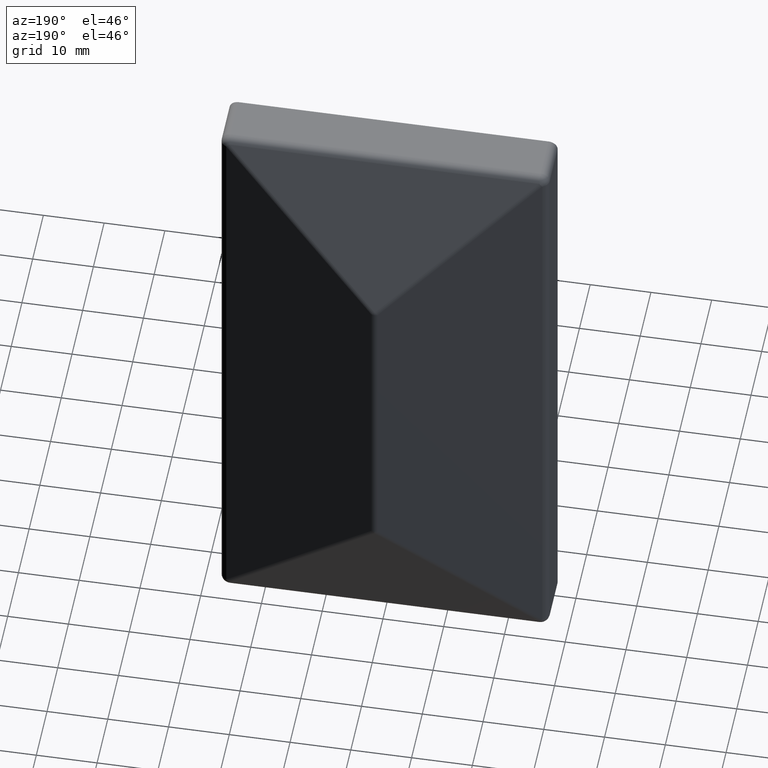
[diagram: clean part render]
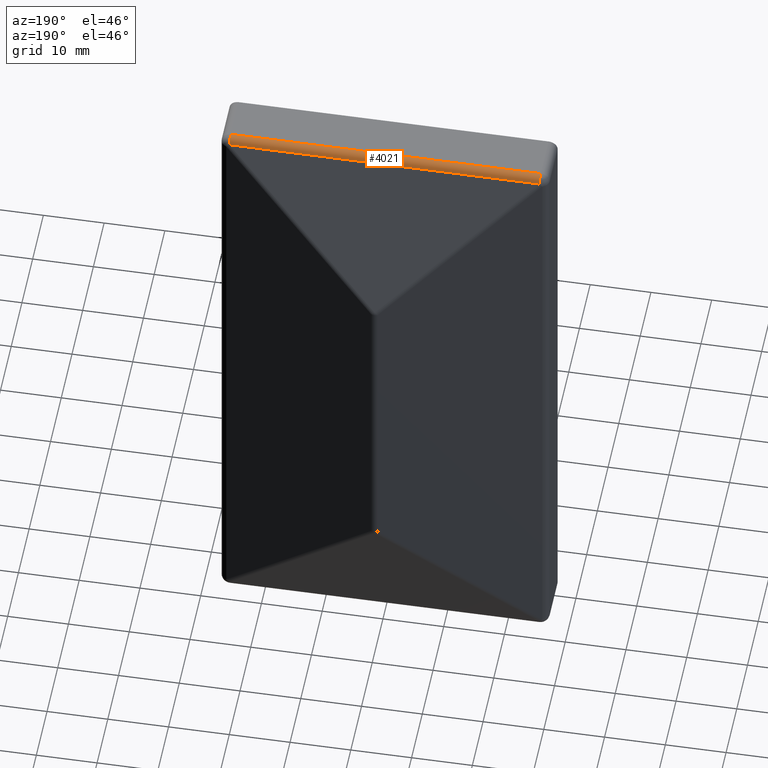
[diagram: same view with one face highlighted and labeled with its STEP entity id]
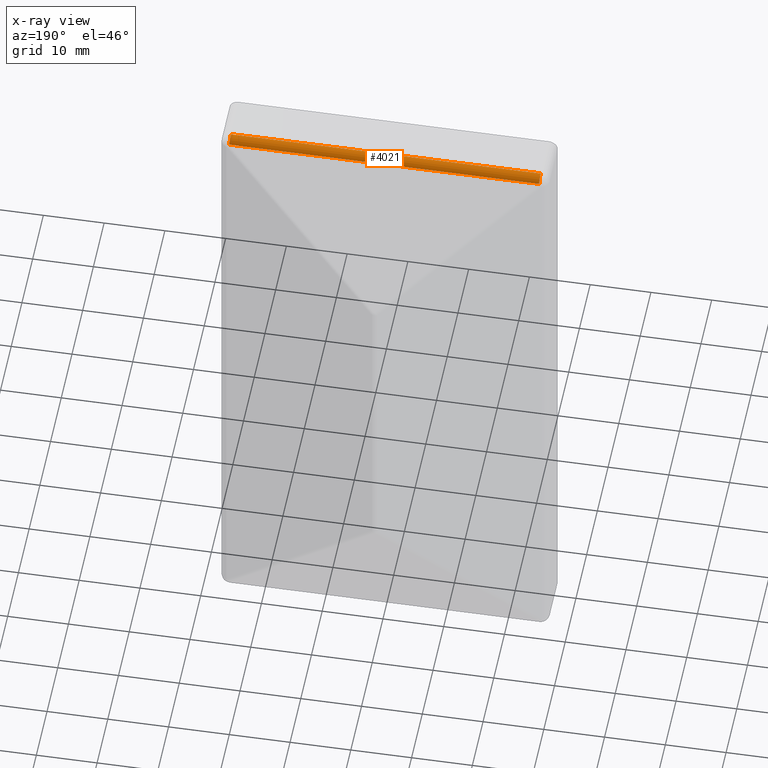
[diagram: x-ray of the same camera — body ghosted, the highlighted face saturated]
A machine part, auxiliary view. The second image highlights one B-rep face of the part: STEP entity #4021.
The next image is the same camera in x-ray: the body ghosted, the highlighted face saturated — about 0% of this face is hidden behind the body in this view.
In plain terms, the highlighted cylindrical surface (edge-blend (fillet) strip) has radius 1.5 mm, axis along (1, -0, -0).
Its self-contained STEP definition (entity closure, byte-faithful):
#9 = DIRECTION ( 'NONE',  ( 1.000000000000000000, -0.000000000000000000, -0.000000000000000000 ) ) ;
#330 = DIRECTION ( 'NONE',  ( 0.000000000000000000, 0.000000000000000000, -1.000000000000000000 ) ) ;
#414 = EDGE_CURVE ( 'NONE', #1151, #14138, #4890, .T. ) ;
#1054 = EDGE_LOOP ( 'NONE', ( #13924, #13415, #3672, #2685 ) ) ;
#1151 = VERTEX_POINT ( 'NONE', #11228 ) ;
#1216 = FACE_OUTER_BOUND ( 'NONE', #1054, .T. ) ;
#1639 = AXIS2_PLACEMENT_3D ( 'NONE', #5536, #9, #5678 ) ;
#2253 = CARTESIAN_POINT ( 'NONE',  ( 25.50000000000001066, 7.350000000000009415, 52.00000000000001421 ) ) ;
#2317 = CARTESIAN_POINT ( 'NONE',  ( -25.49999999999998934, 7.350000000000009415, 52.00000000000001421 ) ) ;
#2685 = ORIENTED_EDGE ( 'NONE', *, *, #11240, .T. ) ;
#3528 = VERTEX_POINT ( 'NONE', #2317 ) ;
#3600 = EDGE_CURVE ( 'NONE', #14303, #14138, #12301, .T. ) ;
#3672 = ORIENTED_EDGE ( 'NONE', *, *, #414, .F. ) ;
#3800 = DIRECTION ( 'NONE',  ( 0.000000000000000000, 0.000000000000000000, -1.000000000000000000 ) ) ;
#3891 = CARTESIAN_POINT ( 'NONE',  ( -27.00000000000000000, 8.760343057876109896, 51.01081548439793067 ) ) ;
#3944 = DIRECTION ( 'NONE',  ( -1.000000000000000000, 0.000000000000000000, 0.000000000000000000 ) ) ;
#4021 = ADVANCED_FACE ( 'NONE', ( #1216 ), #7072, .T. ) ;
#4890 = LINE ( 'NONE', #3891, #12847 ) ;
#5494 = AXIS2_PLACEMENT_3D ( 'NONE', #12670, #3944, #3800 ) ;
#5536 = CARTESIAN_POINT ( 'NONE',  ( -27.00000000000000000, 7.350000000000009415, 50.50000000000001421 ) ) ;
#5678 = DIRECTION ( 'NONE',  ( 0.000000000000000000, 0.000000000000000000, -1.000000000000000000 ) ) ;
#6041 = DIRECTION ( 'NONE',  ( 1.000000000000000000, -0.000000000000000000, -0.000000000000000000 ) ) ;
#6567 = CARTESIAN_POINT ( 'NONE',  ( 25.49999999999998934, 8.760343057876109896, 51.01081548439793067 ) ) ;
#6971 = VECTOR ( 'NONE', #11504, 1000.000000000000000 ) ;
#7072 = CYLINDRICAL_SURFACE ( 'NONE', #1639, 1.499999999999994449 ) ;
#7179 = CARTESIAN_POINT ( 'NONE',  ( -27.00000000000000000, 7.350000000000009415, 52.00000000000001421 ) ) ;
#8277 = EDGE_CURVE ( 'NONE', #3528, #14303, #11682, .T. ) ;
#9245 = CARTESIAN_POINT ( 'NONE',  ( -25.49999999999998934, 7.350000000000009415, 50.50000000000001421 ) ) ;
#10378 = DIRECTION ( 'NONE',  ( 1.000000000000000000, -0.000000000000000000, -0.000000000000000000 ) ) ;
#10785 = AXIS2_PLACEMENT_3D ( 'NONE', #9245, #10378, #330 ) ;
#11228 = CARTESIAN_POINT ( 'NONE',  ( -25.50000000000001421, 8.760343057876108119, 51.01081548439793067 ) ) ;
#11240 = EDGE_CURVE ( 'NONE', #1151, #3528, #11843, .T. ) ;
#11504 = DIRECTION ( 'NONE',  ( 1.000000000000000000, -0.000000000000000000, -0.000000000000000000 ) ) ;
#11682 = LINE ( 'NONE', #7179, #6971 ) ;
#11843 = CIRCLE ( 'NONE', #10785, 1.499999999999994449 ) ;
#12301 = CIRCLE ( 'NONE', #5494, 1.499999999999994449 ) ;
#12670 = CARTESIAN_POINT ( 'NONE',  ( 25.50000000000001066, 7.350000000000009415, 50.50000000000001421 ) ) ;
#12847 = VECTOR ( 'NONE', #6041, 1000.000000000000000 ) ;
#13415 = ORIENTED_EDGE ( 'NONE', *, *, #3600, .T. ) ;
#13924 = ORIENTED_EDGE ( 'NONE', *, *, #8277, .T. ) ;
#14138 = VERTEX_POINT ( 'NONE', #6567 ) ;
#14303 = VERTEX_POINT ( 'NONE', #2253 ) ;